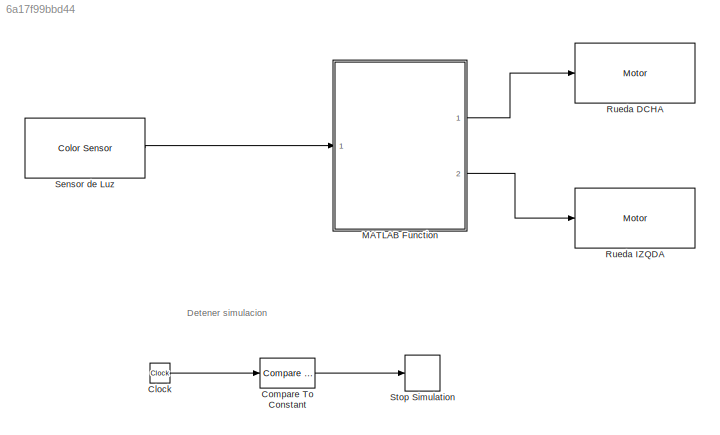
MODEL slx_6a17f99bbd44
KIND model
CONFIG AbsTol = auto
CONFIG EnableMultiTasking = on
CONFIG FixedStep = auto
CONFIG MaxStep = auto
CONFIG MinStep = auto
CONFIG RelTol = 1e-3
CONFIG SampleTimeConstraint = Unconstrained
CONFIG Solver = FixedStepAuto
CONFIG SolverName = FixedStepAuto
CONFIG StartTime = 0.0
CONFIG StopTime = 10.0
BLOCK [Clock] Clock
BLOCK [Reference] Compare To Constant  REF=simulink/Logic and Bit
Operations/Compare
To Constant
  Ports = [1, 1]
  SourceBlock = simulink/Logic and Bit\nOperations/Compare\nTo Constant
  SourceProductBaseCode = SL
  SourceType = Compare To Constant
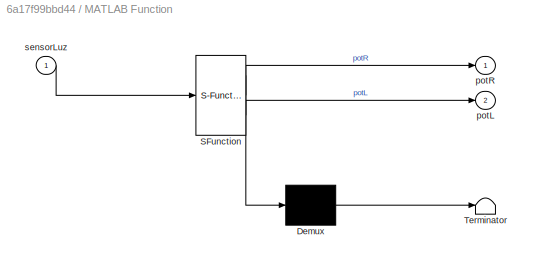
BLOCK [SubSystem] MATLAB Function
  ErrorFcn = Stateflow.Translate.translate
  PermitHierarchicalResolution = ExplicitOnly
  Ports = [1, 2]
  RequestExecContextInheritance = off
  SFBlockType = MATLAB Function
  TreatAsAtomicUnit = on
BLOCK [Demux] MATLAB Function/ Demux 
  Outputs = 1
  Ports = [1, 1]
BLOCK [S-Function] MATLAB Function/ SFunction 
  EnableBusSupport = on
  FunctionName = sf_sfun
  PortCounts = [1 3]
  Ports = [1, 3]
  SFcnIsStateOwnerBlock = off
  SFunctionDeploymentMode = off
  Tag = Stateflow S-Function 2
BLOCK [Terminator] MATLAB Function/ Terminator 
BLOCK [Outport] MATLAB Function/potL
  IconDisplay = Port number
  Port = 2
BLOCK [Outport] MATLAB Function/potR
  IconDisplay = Port number
BLOCK [Inport] MATLAB Function/sensorLuz
  IconDisplay = Port number
BLOCK [Reference] Rueda DCHA  REF=legoev3lib/Motor
  Ports = [1]
  SourceBlock = legoev3lib/Motor
  SourceProductBaseCode = LEGOEV3
  SourceProductName = Simulink Support Package for LEGO MINDSTORMS EV3 Hardware
  SourceType = LEGO MINDSTORMS EV3 Motor
BLOCK [Reference] Rueda IZQDA  REF=legoev3lib/Motor
  Ports = [1]
  SourceBlock = legoev3lib/Motor
  SourceProductBaseCode = LEGOEV3
  SourceProductName = Simulink Support Package for LEGO MINDSTORMS EV3 Hardware
  SourceType = LEGO MINDSTORMS EV3 Motor
BLOCK [Reference] Sensor de Luz  REF=legoev3lib/Color Sensor
  Ports = [0, 1]
  SourceBlock = legoev3lib/Color Sensor
  SourceProductBaseCode = LEGOEV3
  SourceProductName = Simulink Support Package for LEGO MINDSTORMS EV3 Hardware
  SourceType = LEGO MINDSTORMS EV3 Color Sensor
BLOCK [Stop] Stop Simulation
ANNOTATION (root): Detener simulacion
LINE Clock:1 -> Compare To Constant:1
LINE Compare To Constant:1 -> Stop Simulation:1
LINE MATLAB Function:1 -> Rueda DCHA:1
LINE MATLAB Function:2 -> Rueda IZQDA:1
LINE Sensor de Luz:1 -> MATLAB Function:1
CHART MATLAB Function states=1 transitions=1
  STATE_LABEL 'eML_blk_kernel()'
  STATE_LABEL 'SCRIPT:\nfunction [potR, potL] = fcn(sensorLuz)\n    % Constantes generales\n    Kp = 0.5;\n    Ki = 0.05;\n    Kd = 0.1;\n    BLANCO = 70;\n    NEGRO = 35;\n    P = 10;\n   \n    % Inicializacion de variables\n    sat = 60;\n    wup = 30;\n    \n    persistent integral;\n    if (isempty(integral))\n        integral= 0;\n    end\n    \n    persistent lastError;\n    if (isempty(lastError))\n        lastError = 0;\n    ...<+896ch>'
